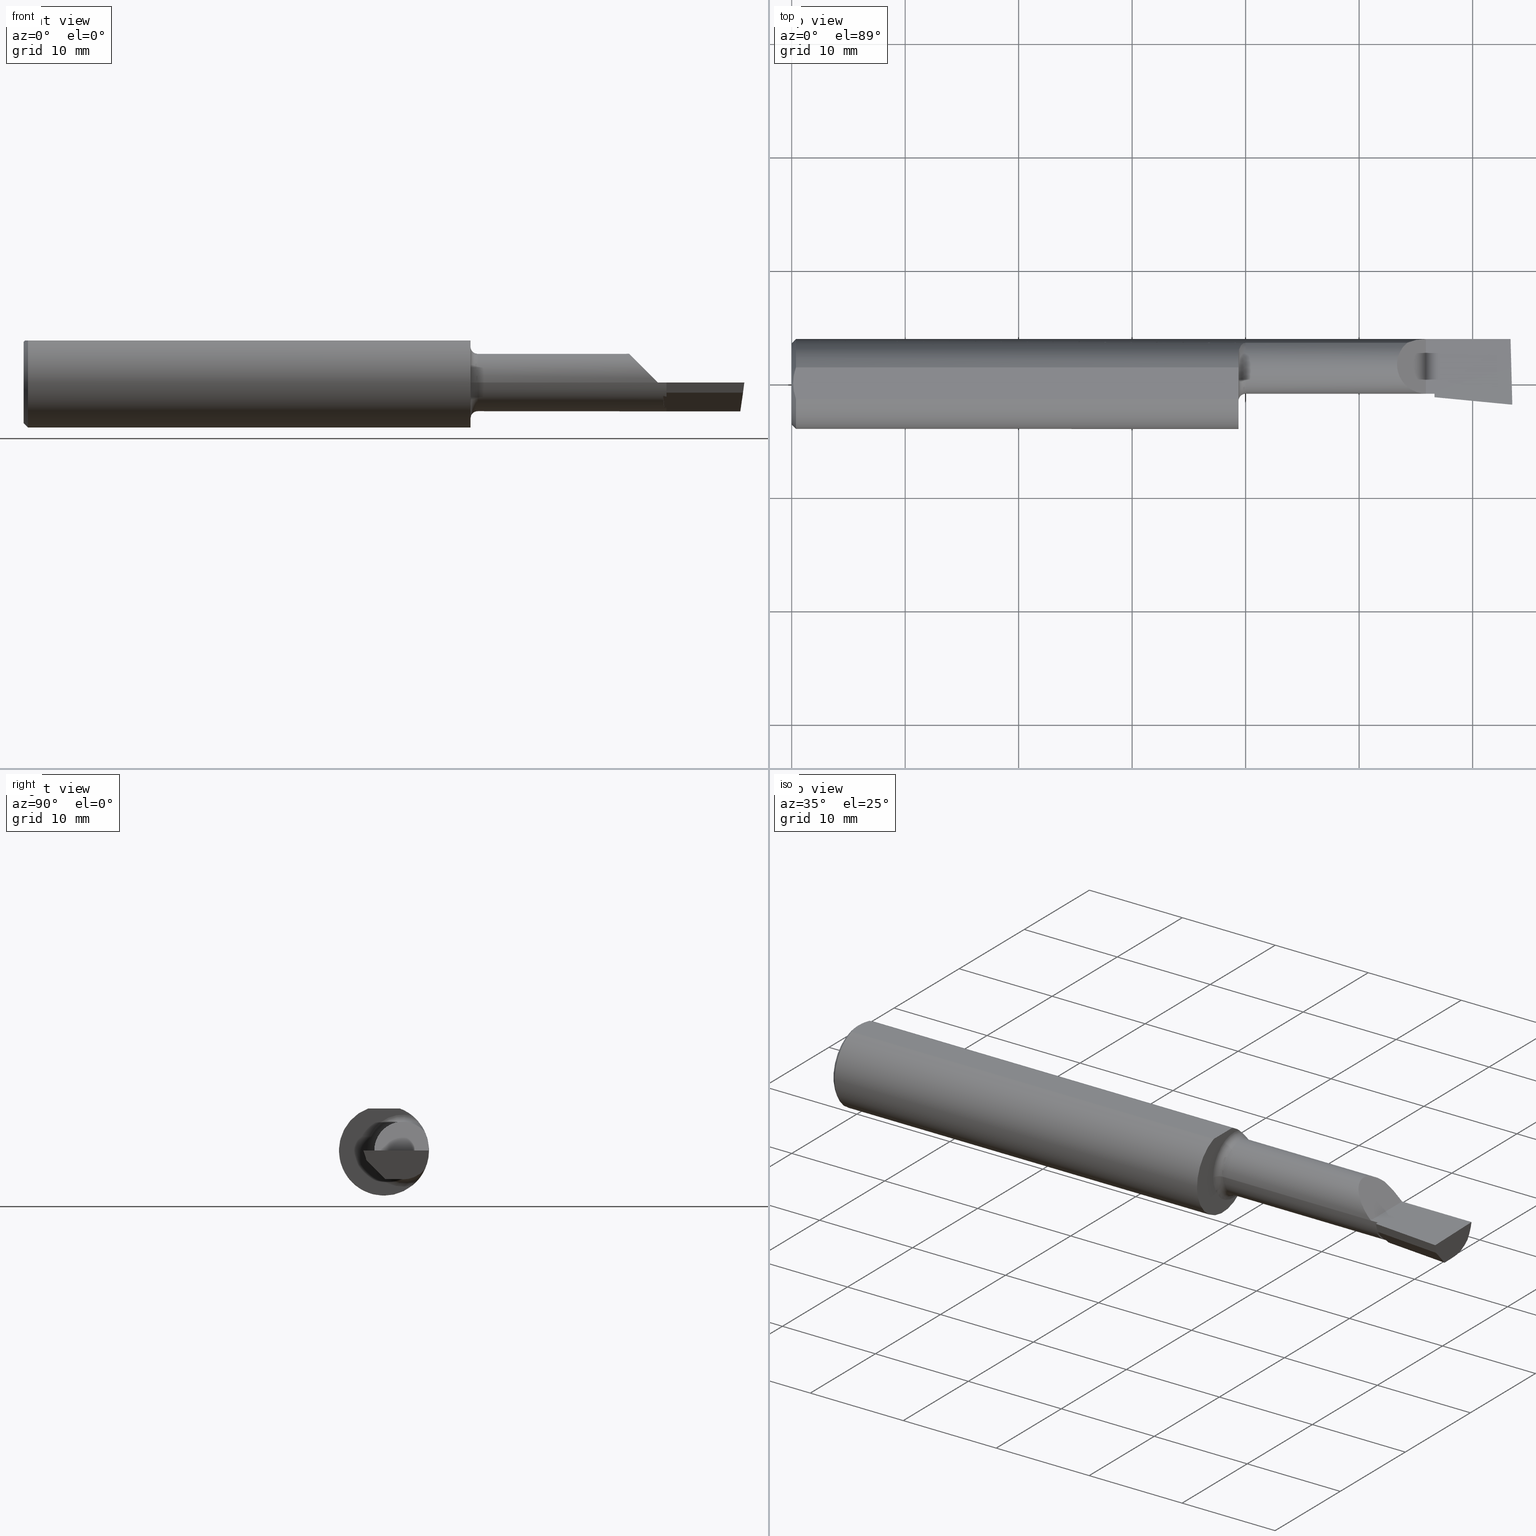
[diagram: canonical four-view strip — front | top / right | iso, engineering-drawing reading convention]
A machine part, canonical four-view strip (front | top / right | iso — engineering-drawing reading convention). The complete STEP part file that produces these views, byte-faithful:
ISO-10303-21;
HEADER;
FILE_DESCRIPTION (( 'STEP AP203' ),
    '1' );
FILE_NAME ('212028-LHB230900.STEP',
    '2024-08-23T18:55:06',
    ( '' ),
    ( '' ),
    'SwSTEP 2.0',
    'SolidWorks 2024',
    '' );
FILE_SCHEMA (( 'CONFIG_CONTROL_DESIGN' ));
ENDSEC;

DATA;
#1 = ORIENTED_EDGE ( 'NONE', *, *, #180, .F. ) ;
#2 = EDGE_CURVE ( 'NONE', #630, #461, #433, .T. ) ;
#3 = CALENDAR_DATE ( 2024, 23, 8 ) ;
#4 = DIRECTION ( 'NONE',  ( -1.000000000000000000, 3.414809992080329023E-18, -0.000000000000000000 ) ) ;
#5 = ORIENTED_EDGE ( 'NONE', *, *, #385, .T. ) ;
#6 = AXIS2_PLACEMENT_3D ( 'NONE', #624, #246, #349 ) ;
#7 = CYLINDRICAL_SURFACE ( 'NONE', #471, 0.09990000000000004432 ) ;
#8 = EDGE_CURVE ( 'NONE', #367, #207, #20, .T. ) ;
#9 = CARTESIAN_POINT ( 'NONE',  ( 1.571727793412432517, 0.1417279534125319984, 0.06543130843947221609 ) ) ;
#10 = PERSON_AND_ORGANIZATION ( #457, #568 ) ;
#11 = FACE_OUTER_BOUND ( 'NONE', #685, .T. ) ;
#12 = DIRECTION ( 'NONE',  ( 0.000000000000000000, 0.000000000000000000, 1.000000000000000000 ) ) ;
#13 = EDGE_CURVE ( 'NONE', #674, #371, #94, .T. ) ;
#14 = DIRECTION ( 'NONE',  ( 0.02677973311239052051, -0.9996413586354002678, 0.000000000000000000 ) ) ;
#15 = CARTESIAN_POINT ( 'NONE',  ( 2.229999999999999982, -0.03390000000000001346, 0.000000000000000000 ) ) ;
#16 = EDGE_LOOP ( 'NONE', ( #305, #145, #111, #203, #1 ) ) ;
#17 = CC_DESIGN_PERSON_AND_ORGANIZATION_ASSIGNMENT ( #326, #436, ( #70 ) ) ;
#18 = AXIS2_PLACEMENT_3D ( 'NONE', #220, #319, #544 ) ;
#19 = PLANE ( 'NONE',  #273 ) ;
#20 =( BOUNDED_CURVE ( )  B_SPLINE_CURVE ( 3, ( #158, #646, #104, #55 ),
 .UNSPECIFIED., .F., .F. ) 
 B_SPLINE_CURVE_WITH_KNOTS ( ( 4, 4 ),
 ( 5.216926016506045372, 5.800715090403769203 ),
 .UNSPECIFIED. ) 
 CURVE ( )  GEOMETRIC_REPRESENTATION_ITEM ( )  RATIONAL_B_SPLINE_CURVE ( ( 1.000000000000000000, 0.9718002727220685921, 0.9718002727220685921, 1.000000000000000000 ) ) 
 REPRESENTATION_ITEM ( '' )  );
#21 = ORIENTED_EDGE ( 'NONE', *, *, #92, .T. ) ;
#22 = EDGE_CURVE ( 'NONE', #302, #662, #330, .T. ) ;
#23 = DIRECTION ( 'NONE',  ( -0.09584575252022335679, -0.9953961983671787417, 0.000000000000000000 ) ) ;
#24 = CARTESIAN_POINT ( 'NONE',  ( 0.01187749995209277584, 0.04610609988228757394, 0.1460999999999999799 ) ) ;
#25 = ORIENTED_EDGE ( 'NONE', *, *, #82, .F. ) ;
#26 = DIRECTION ( 'NONE',  ( -1.000000000000000000, 3.414809992080329023E-18, -0.000000000000000000 ) ) ;
#27 = CARTESIAN_POINT ( 'NONE',  ( 2.050862765435913726, 0.07006795998724148211, 0.1491372345640848418 ) ) ;
#28 = EDGE_LOOP ( 'NONE', ( #439, #285, #448, #354 ) ) ;
#29 = LINE ( 'NONE', #243, #581 ) ;
#30 = VECTOR ( 'NONE', #487, 39.37007874015748143 ) ;
#31 = EDGE_CURVE ( 'NONE', #132, #194, #434, .T. ) ;
#32 = LINE ( 'NONE', #629, #227 ) ;
#33 = ORIENTED_EDGE ( 'NONE', *, *, #412, .T. ) ;
#34 = DIRECTION ( 'NONE',  ( -1.000000000000000000, -0.000000000000000000, -0.000000000000000000 ) ) ;
#35 = LINE ( 'NONE', #95, #283 ) ;
#36 = ORIENTED_EDGE ( 'NONE', *, *, #657, .T. ) ;
#37 = DIRECTION ( 'NONE',  ( -0.06717917588521574168, -0.6976824170844040385, 0.7132504491541851177 ) ) ;
#38 = DIRECTION ( 'NONE',  ( -0.9927123040216839778, -0.02659410830638028397, 0.1175373763844857478 ) ) ;
#39 = ORIENTED_EDGE ( 'NONE', *, *, #249, .F. ) ;
#40 = EDGE_CURVE ( 'NONE', #280, #399, #61, .T. ) ;
#41 = CARTESIAN_POINT ( 'NONE',  ( 0.01499999999999999424, 0.000000000000000000, 0.000000000000000000 ) ) ;
#42 = UNCERTAINTY_MEASURE_WITH_UNIT (LENGTH_MEASURE( 1.000000000000000082E-05 ), #583, 'distance_accuracy_value', 'NONE');
#43 = CIRCLE ( 'NONE', #265, 0.1249000000000000943 ) ;
#44 = DIRECTION ( 'NONE',  ( 0.9953961983671787417, -0.09584575252022420333, -9.831095531899268478E-17 ) ) ;
#45 = VERTEX_POINT ( 'NONE', #215 ) ;
#46 = EDGE_CURVE ( 'NONE', #194, #256, #694, .T. ) ;
#47 = CARTESIAN_POINT ( 'NONE',  ( 0.01190375560897322625, -0.04618065518901639382, 0.1461000000000000076 ) ) ;
#48 = ORIENTED_EDGE ( 'NONE', *, *, #22, .F. ) ;
#49 = PERSON_AND_ORGANIZATION ( #457, #568 ) ;
#50 = PLANE ( 'NONE',  #18 ) ;
#51 = ORIENTED_EDGE ( 'NONE', *, *, #412, .F. ) ;
#52 = CARTESIAN_POINT ( 'NONE',  ( 1.567803744158916324, 0.1404244429940951500, -0.06818941713933229787 ) ) ;
#53 = CARTESIAN_POINT ( 'NONE',  ( 2.229999999999999982, -0.06272190053731417636, -0.006732936968033723622 ) ) ;
#54 = VECTOR ( 'NONE', #14, 39.37007874015748854 ) ;
#55 = CARTESIAN_POINT ( 'NONE',  ( 2.218438857550834253, -0.02249656715429228931, -0.04635048653364759463 ) ) ;
#56 = ORIENTED_EDGE ( 'NONE', *, *, #300, .F. ) ;
#57 = VERTEX_POINT ( 'NONE', #602 ) ;
#58 = CARTESIAN_POINT ( 'NONE',  ( 1.550415155711666992, 0.1091772789608301680, 0.1117554983051645690 ) ) ;
#59 = AXIS2_PLACEMENT_3D ( 'NONE', #147, #584, #680 ) ;
#60 = CARTESIAN_POINT ( 'NONE',  ( 1.574999999999999956, -0.03390000000000009672, 0.000000000000000000 ) ) ;
#61 = LINE ( 'NONE', #320, #112 ) ;
#62 = LINE ( 'NONE', #225, #159 ) ;
#63 = CARTESIAN_POINT ( 'NONE',  ( 1.574999999999999956, 0.1419939393939388950, 0.06484544066771663617 ) ) ;
#64 = ORIENTED_EDGE ( 'NONE', *, *, #188, .T. ) ;
#65 = CARTESIAN_POINT ( 'NONE',  ( 2.490546784200027730, -0.04745170094814316064, -0.07430949365197365986 ) ) ;
#66 = CARTESIAN_POINT ( 'NONE',  ( 1.550000000000000044, -0.05890000000000009811, 0.000000000000000000 ) ) ;
#67 = ORIENTED_EDGE ( 'NONE', *, *, #8, .F. ) ;
#68 = AXIS2_PLACEMENT_3D ( 'NONE', #523, #83, #567 ) ;
#69 = CARTESIAN_POINT ( 'NONE',  ( 1.574999999999999956, 0.1419939393939390337, -0.06484544066771648352 ) ) ;
#70 = SECURITY_CLASSIFICATION ( '', '', #608 ) ;
#71 = CARTESIAN_POINT ( 'NONE',  ( 2.089191818750234741, -0.03390000000000004121, 0.1108081812497644647 ) ) ;
#72 = ORIENTED_EDGE ( 'NONE', *, *, #408, .T. ) ;
#73 = LINE ( 'NONE', #413, #417 ) ;
#74 = DIRECTION ( 'NONE',  ( 0.000000000000000000, -0.000000000000000000, -1.000000000000000000 ) ) ;
#75 = ORIENTED_EDGE ( 'NONE', *, *, #82, .T. ) ;
#76 = DIRECTION ( 'NONE',  ( 0.06836202603457079696, 0.7099667855717587406, 0.7009092642998472344 ) ) ;
#77 = EDGE_CURVE ( 'NONE', #371, #132, #332, .T. ) ;
#78 = DIRECTION ( 'NONE',  ( -3.414809992080329023E-18, -1.000000000000000000, 0.000000000000000000 ) ) ;
#79 = EDGE_LOOP ( 'NONE', ( #297, #472, #569, #533, #293, #637, #84, #455, #580, #650, #156, #308, #528 ) ) ;
#80 = DIRECTION ( 'NONE',  ( 3.414809992080329023E-18, 1.000000000000000000, -1.656870447394628111E-16 ) ) ;
#81 = AXIS2_PLACEMENT_3D ( 'NONE', #698, #563, #12 ) ;
#82 = EDGE_CURVE ( 'NONE', #207, #384, #228, .T. ) ;
#83 = DIRECTION ( 'NONE',  ( -1.000000000000000000, 3.414809992080329023E-18, -0.000000000000000000 ) ) ;
#84 = ORIENTED_EDGE ( 'NONE', *, *, #686, .F. ) ;
#85 = DIRECTION ( 'NONE',  ( -1.000000000000000000, 3.414809992080329023E-18, -0.000000000000000000 ) ) ;
#86 = CARTESIAN_POINT ( 'NONE',  ( 1.550000000000000044, 0.09941818181818157241, 0.1203463132961163223 ) ) ;
#87 = CC_DESIGN_PERSON_AND_ORGANIZATION_ASSIGNMENT ( #10, #654, ( #106 ) ) ;
#88 = ORIENTED_EDGE ( 'NONE', *, *, #458, .F. ) ;
#89 =( NAMED_UNIT ( * ) SI_UNIT ( $, .STERADIAN. ) SOLID_ANGLE_UNIT ( ) );
#90 = CARTESIAN_POINT ( 'NONE',  ( 2.200000000000000178, -0.2500000000000000555, 9.797174393178826150E-17 ) ) ;
#91 = ORIENTED_EDGE ( 'NONE', *, *, #636, .T. ) ;
#92 = EDGE_CURVE ( 'NONE', #644, #57, #335, .T. ) ;
#93 = DIRECTION ( 'NONE',  ( -1.000000000000000000, -0.000000000000000000, -0.000000000000000000 ) ) ;
#94 = CIRCLE ( 'NONE', #527, 0.1560999999999999888 ) ;
#95 = CARTESIAN_POINT ( 'NONE',  ( 2.490723658160492793, -0.02712709695662827644, -0.06821696633277901656 ) ) ;
#96 = AXIS2_PLACEMENT_3D ( 'NONE', #125, #565, #675 ) ;
#97 = ORIENTED_EDGE ( 'NONE', *, *, #557, .F. ) ;
#98 = CARTESIAN_POINT ( 'NONE',  ( 1.550428134837082306, 0.1092850169809853472, -0.1116497630123365198 ) ) ;
#99 = CARTESIAN_POINT ( 'NONE',  ( 2.486592206520481518, 0.1419939393939392558, -0.06484544066771610882 ) ) ;
#100 = ORIENTED_EDGE ( 'NONE', *, *, #636, .F. ) ;
#101 = CARTESIAN_POINT ( 'NONE',  ( 1.564650979716348811, 0.1387334617349064159, -0.07160083655282410697 ) ) ;
#102 = EDGE_CURVE ( 'NONE', #45, #614, #460, .T. ) ;
#103 = FACE_OUTER_BOUND ( 'NONE', #28, .T. ) ;
#104 = CARTESIAN_POINT ( 'NONE',  ( 2.219319914771515023, -0.01334643806718939160, -0.06382074572152920955 ) ) ;
#105 = CIRCLE ( 'NONE', #503, 0.09990000000000008595 ) ;
#106 = PRODUCT_DEFINITION_FORMATION_WITH_SPECIFIED_SOURCE ( 'ANY', '', #516, .NOT_KNOWN. ) ;
#107 = VERTEX_POINT ( 'NONE', #353 ) ;
#108 = DATE_AND_TIME ( #113, #539 ) ;
#109 = ORIENTED_EDGE ( 'NONE', *, *, #541, .T. ) ;
#110 = CARTESIAN_POINT ( 'NONE',  ( 0.000000000000000000, 0.000000000000000000, 0.000000000000000000 ) ) ;
#111 = ORIENTED_EDGE ( 'NONE', *, *, #235, .T. ) ;
#112 = VECTOR ( 'NONE', #4, 39.37007874015748143 ) ;
#113 = CALENDAR_DATE ( 2024, 23, 8 ) ;
#114 = DIRECTION ( 'NONE',  ( -9.891848030060559526E-17, 0.000000000000000000, -1.000000000000000000 ) ) ;
#115 = LINE ( 'NONE', #226, #603 ) ;
#116 = VERTEX_POINT ( 'NONE', #15 ) ;
#117 = APPROVAL_ROLE ( '' ) ;
#118 = CARTESIAN_POINT ( 'NONE',  ( 1.902500000000000080, 0.1419939393939392558, -0.06484544066771610882 ) ) ;
#119 = DIRECTION ( 'NONE',  ( -1.000000000000000000, 3.414809992080329023E-18, 0.000000000000000000 ) ) ;
#120 = ORIENTED_EDGE ( 'NONE', *, *, #188, .F. ) ;
#121 = DIRECTION ( 'NONE',  ( 3.414809992080329023E-18, 1.000000000000000000, 0.000000000000000000 ) ) ;
#122 = DIRECTION ( 'NONE',  ( -1.000000000000000000, 3.414809992080329023E-18, -0.000000000000000000 ) ) ;
#123 = ORIENTED_EDGE ( 'NONE', *, *, #582, .F. ) ;
#124 = CIRCLE ( 'NONE', #296, 0.09990000000000008595 ) ;
#125 = CARTESIAN_POINT ( 'NONE',  ( 0.01499999999999999424, 0.000000000000000000, 0.000000000000000000 ) ) ;
#126 = CC_DESIGN_APPROVAL ( #576, ( #70 ) ) ;
#127 = CARTESIAN_POINT ( 'NONE',  ( 2.200000000000000178, -0.2500000000000000555, 9.797174393178826150E-17 ) ) ;
#128 = ORIENTED_EDGE ( 'NONE', *, *, #333, .F. ) ;
#129 = ADVANCED_FACE ( 'NONE', ( #661 ), #459, .F. ) ;
#130 = FACE_OUTER_BOUND ( 'NONE', #404, .T. ) ;
#131 = CARTESIAN_POINT ( 'NONE',  ( 1.574999999999999956, 0.06599999999999998923, 0.000000000000000000 ) ) ;
#132 = VERTEX_POINT ( 'NONE', #63 ) ;
#133 = CARTESIAN_POINT ( 'NONE',  ( 0.000000000000000000, -0.05497272050753897882, 0.1461000000000000076 ) ) ;
#134 = PRODUCT_DEFINITION ( 'UNKNOWN', '', #106, #365 ) ;
#135 = CARTESIAN_POINT ( 'NONE',  ( 2.504767759937919891, -0.2498722748537978433, 6.782458027410943008E-17 ) ) ;
#136 = ORIENTED_EDGE ( 'NONE', *, *, #686, .T. ) ;
#137 = DIRECTION ( 'NONE',  ( -1.000000000000000000, 3.414809992080329023E-18, -0.000000000000000000 ) ) ;
#138 = VECTOR ( 'NONE', #144, 39.37007874015748143 ) ;
#139 = LOCAL_TIME ( 11, 55, 6.000000000000000000, #634 ) ;
#140 = CARTESIAN_POINT ( 'NONE',  ( 2.222310128493429904, 0.01770811878936139061, -0.08745229676307864075 ) ) ;
#141 = ORIENTED_EDGE ( 'NONE', *, *, #180, .T. ) ;
#142 = PERSON_AND_ORGANIZATION ( #457, #568 ) ;
#143 = ADVANCED_FACE ( 'NONE', ( #406 ), #236, .F. ) ;
#144 = DIRECTION ( 'NONE',  ( -0.02677973311239052051, 0.9996413586354002678, 2.612414329932748356E-18 ) ) ;
#145 = ORIENTED_EDGE ( 'NONE', *, *, #300, .T. ) ;
#146 = CALENDAR_DATE ( 2024, 23, 8 ) ;
#147 = CARTESIAN_POINT ( 'NONE',  ( 0.000000000000000000, 0.000000000000000000, 0.000000000000000000 ) ) ;
#148 = ORIENTED_EDGE ( 'NONE', *, *, #541, .F. ) ;
#149 = DATE_TIME_ROLE ( 'creation_date' ) ;
#150 = AXIS2_PLACEMENT_3D ( 'NONE', #247, #515, #356 ) ;
#151 = LINE ( 'NONE', #135, #138 ) ;
#152 = VERTEX_POINT ( 'NONE', #401 ) ;
#153 = ADVANCED_FACE ( 'NONE', ( #669 ), #393, .F. ) ;
#154 = CARTESIAN_POINT ( 'NONE',  ( 1.552063943834881554, 0.1181307192064760120, -0.1022448908112571081 ) ) ;
#155 = CARTESIAN_POINT ( 'NONE',  ( 0.01499999999999999944, -0.05497272050753897882, 0.1461000000000000076 ) ) ;
#156 = ORIENTED_EDGE ( 'NONE', *, *, #77, .T. ) ;
#157 = APPROVAL_DATE_TIME ( #699, #402 ) ;
#158 = CARTESIAN_POINT ( 'NONE',  ( 2.222310128493429904, 0.01770811878936139061, -0.08745229676307864075 ) ) ;
#159 = VECTOR ( 'NONE', #659, 39.37007874015748143 ) ;
#160 = APPROVAL_PERSON_ORGANIZATION ( #586, #402, #645 ) ;
#161 = CARTESIAN_POINT ( 'NONE',  ( 1.902500000000000080, 0.1419939393939392558, 0.06484544066771610882 ) ) ;
#162 = EDGE_LOOP ( 'NONE', ( #39, #416, #200, #64 ) ) ;
#163 = PLANE ( 'NONE',  #380 ) ;
#164 = B_SPLINE_CURVE_WITH_KNOTS ( 'NONE', 3,
 ( #499, #350, #555, #447, #24, #454 ),
 .UNSPECIFIED., .F., .F.,
 ( 4, 2, 4 ),
 ( 0.002884734412378666280, 0.003593604306281239329, 0.004302474200183812811 ),
 .UNSPECIFIED. ) ;
#165 = CARTESIAN_POINT ( 'NONE',  ( 1.550000000000000044, 0.000000000000000000, 0.000000000000000000 ) ) ;
#166 = CARTESIAN_POINT ( 'NONE',  ( 1.574999999999999956, 0.1419939393939390337, -0.06484544066771648352 ) ) ;
#167 = DIRECTION ( 'NONE',  ( 0.000000000000000000, -1.000000000000000000, 0.000000000000000000 ) ) ;
#168 = AXIS2_PLACEMENT_3D ( 'NONE', #261, #395, #445 ) ;
#169 = CIRCLE ( 'NONE', #347, 0.1560999999999999888 ) ;
#170 = EDGE_CURVE ( 'NONE', #280, #116, #115, .T. ) ;
#171 = DIRECTION ( 'NONE',  ( -1.000000000000000000, 3.414809992080329023E-18, -0.000000000000000000 ) ) ;
#172 = ADVANCED_BREP_SHAPE_REPRESENTATION ( '212028-LHB230900', ( #477, #504 ), #684 ) ;
#173 = APPLICATION_CONTEXT ( 'configuration controlled 3d designs of mechanical parts and assemblies' ) ;
#174 = EDGE_LOOP ( 'NONE', ( #100, #187, #509, #427 ) ) ;
#175 = CARTESIAN_POINT ( 'NONE',  ( 2.484488697759745790, 0.06558446243682164445, -0.09990000000000000269 ) ) ;
#176 = CARTESIAN_POINT ( 'NONE',  ( 2.229999999999999982, -0.02114125901369683092, -0.04885090559557524886 ) ) ;
#177 =( BOUNDED_CURVE ( )  B_SPLINE_CURVE ( 3, ( #548, #27, #71, #292 ),
 .UNSPECIFIED., .F., .T. ) 
 B_SPLINE_CURVE_WITH_KNOTS ( ( 4, 4 ),
 ( 5.418794317430681851, 7.853981633974482790 ),
 .UNSPECIFIED. ) 
 CURVE ( )  GEOMETRIC_REPRESENTATION_ITEM ( )  RATIONAL_B_SPLINE_CURVE ( ( 1.000000000000000000, 0.5639363621110593527, 0.5639363621110593527, 1.000000000000000000 ) ) 
 REPRESENTATION_ITEM ( '' )  );
#178 = VERTEX_POINT ( 'NONE', #288 ) ;
#179 = FACE_OUTER_BOUND ( 'NONE', #16, .T. ) ;
#180 = EDGE_CURVE ( 'NONE', #57, #152, #665, .T. ) ;
#181 = DIRECTION ( 'NONE',  ( 1.000000000000000000, -3.414809992080329023E-18, 0.000000000000000000 ) ) ;
#182 = ORIENTED_EDGE ( 'NONE', *, *, #46, .F. ) ;
#183 = VECTOR ( 'NONE', #590, 39.37007874015748143 ) ;
#184 = CARTESIAN_POINT ( 'NONE',  ( 1.571725699135995802, 0.1417275062431943289, -0.06543227863119886745 ) ) ;
#185 = AXIS2_PLACEMENT_3D ( 'NONE', #682, #612, #121 ) ;
#186 = EDGE_CURVE ( 'NONE', #116, #461, #505, .T. ) ;
#187 = ORIENTED_EDGE ( 'NONE', *, *, #582, .T. ) ;
#188 = EDGE_CURVE ( 'NONE', #518, #399, #124, .T. ) ;
#189 = CARTESIAN_POINT ( 'NONE',  ( 0.000000000000000000, 0.000000000000000000, 0.000000000000000000 ) ) ;
#190 = FACE_OUTER_BOUND ( 'NONE', #411, .T. ) ;
#191 = VERTEX_POINT ( 'NONE', #223 ) ;
#192 = CARTESIAN_POINT ( 'NONE',  ( 1.574999999999999956, 0.06600000000000000311, 0.000000000000000000 ) ) ;
#193 = PLANE ( 'NONE',  #150 ) ;
#194 = VERTEX_POINT ( 'NONE', #656 ) ;
#195 = DIRECTION ( 'NONE',  ( -1.000000000000000000, -0.000000000000000000, -0.000000000000000000 ) ) ;
#196 = VECTOR ( 'NONE', #535, 39.37007874015748854 ) ;
#197 = EDGE_CURVE ( 'NONE', #272, #674, #339, .T. ) ;
#198 = AXIS2_PLACEMENT_3D ( 'NONE', #294, #76, #303 ) ;
#199 = FACE_OUTER_BOUND ( 'NONE', #490, .T. ) ;
#200 = ORIENTED_EDGE ( 'NONE', *, *, #678, .F. ) ;
#201 = CARTESIAN_POINT ( 'NONE',  ( 1.553264033160802970, 0.1222037927935205326, -0.09733121088759397188 ) ) ;
#202 = PLANE ( 'NONE',  #311 ) ;
#203 = ORIENTED_EDGE ( 'NONE', *, *, #337, .T. ) ;
#204 =( LENGTH_UNIT ( ) NAMED_UNIT ( * ) SI_UNIT ( $, .METRE. ) );
#205 = CARTESIAN_POINT ( 'NONE',  ( 2.495547506291072359, -0.06038477597192913604, -0.03499999999999992700 ) ) ;
#206 = EDGE_CURVE ( 'NONE', #194, #280, #177, .T. ) ;
#207 = VERTEX_POINT ( 'NONE', #673 ) ;
#208 =( NAMED_UNIT ( * ) PLANE_ANGLE_UNIT ( ) SI_UNIT ( $, .RADIAN. ) );
#209 = AXIS2_PLACEMENT_3D ( 'NONE', #606, #181, #240 ) ;
#210 = TOROIDAL_SURFACE ( 'NONE', #284, 0.1249000000000000943, 0.02499999999999993894 ) ;
#211 = CARTESIAN_POINT ( 'NONE',  ( 2.484432346890067311, 0.1227037540429562340, -0.08745207517224946880 ) ) ;
#212 = CARTESIAN_POINT ( 'NONE',  ( 2.218438857550834253, -0.02249656715429228931, -0.04635048653364759463 ) ) ;
#213 = CC_DESIGN_DATE_AND_TIME_ASSIGNMENT ( #638, #149, ( #134 ) ) ;
#214 = LENGTH_MEASURE_WITH_UNIT ( LENGTH_MEASURE( 0.02539999999999999897 ), #204 );
#215 = CARTESIAN_POINT ( 'NONE',  ( 1.550000000000000044, 0.09941818181818157241, -0.1203463132961163223 ) ) ;
#216 = COORDINATED_UNIVERSAL_TIME_OFFSET ( 8, 0, .BEHIND. ) ;
#217 = DIRECTION ( 'NONE',  ( 0.000000000000000000, -1.000000000000000000, 0.000000000000000000 ) ) ;
#218 = CIRCLE ( 'NONE', #696, 0.02499999999999986955 ) ;
#219 = ORIENTED_EDGE ( 'NONE', *, *, #31, .F. ) ;
#220 = CARTESIAN_POINT ( 'NONE',  ( 2.217369785204464261, -0.03359930797873920960, -0.03499999999999993394 ) ) ;
#221 = CARTESIAN_POINT ( 'NONE',  ( 1.573328253254593578, 0.1419939393940946037, 0.06484544066737618628 ) ) ;
#222 = CARTESIAN_POINT ( 'NONE',  ( 2.500000000000000000, -0.2500000000000000555, 6.829619984160658046E-17 ) ) ;
#223 = CARTESIAN_POINT ( 'NONE',  ( 2.493892030279779792, 0.1560999999999997945, 6.888552856243478599E-17 ) ) ;
#224 = ADVANCED_FACE ( 'NONE', ( #279 ), #19, .F. ) ;
#225 = CARTESIAN_POINT ( 'NONE',  ( 2.229999999999999982, 0.06599999999999998923, -0.09990000000000000269 ) ) ;
#226 = CARTESIAN_POINT ( 'NONE',  ( -3.411395182087937181E-19, -0.03390000000000002039, 3.155924005931204823E-16 ) ) ;
#227 = VECTOR ( 'NONE', #44, 39.37007874015748854 ) ;
#228 =( BOUNDED_CURVE ( )  B_SPLINE_CURVE ( 3, ( #212, #431, #389, #176 ),
 .UNSPECIFIED., .F., .F. ) 
 B_SPLINE_CURVE_WITH_KNOTS ( ( 4, 4 ),
 ( 2.845084404038395576, 2.873554924506877661 ),
 .UNSPECIFIED. ) 
 CURVE ( )  GEOMETRIC_REPRESENTATION_ITEM ( )  RATIONAL_B_SPLINE_CURVE ( ( 1.000000000000000000, 0.9999324535960144589, 0.9999324535960144589, 1.000000000000000000 ) ) 
 REPRESENTATION_ITEM ( '' )  );
#229 = CC_DESIGN_SECURITY_CLASSIFICATION ( #70, ( #106 ) ) ;
#230 = ORIENTED_EDGE ( 'NONE', *, *, #206, .F. ) ;
#231 = CARTESIAN_POINT ( 'NONE',  ( 2.222310128493429904, 0.01770811878936139061, -0.08745229676307864075 ) ) ;
#232 = DIRECTION ( 'NONE',  ( -0.7071067811865507924, 0.000000000000000000, 0.7071067811865442421 ) ) ;
#233 = ORIENTED_EDGE ( 'NONE', *, *, #422, .F. ) ;
#234 = CARTESIAN_POINT ( 'NONE',  ( 2.217369785204464261, -0.03359930797873920960, -0.03499999999999993394 ) ) ;
#235 = EDGE_CURVE ( 'NONE', #178, #272, #164, .T. ) ;
#236 = PLANE ( 'NONE',  #514 ) ;
#237 = ORIENTED_EDGE ( 'NONE', *, *, #432, .T. ) ;
#238 = FACE_OUTER_BOUND ( 'NONE', #262, .T. ) ;
#239 = CC_DESIGN_PERSON_AND_ORGANIZATION_ASSIGNMENT ( #49, #488, ( #516 ) ) ;
#240 = DIRECTION ( 'NONE',  ( 3.414809992080329023E-18, 1.000000000000000000, 0.000000000000000000 ) ) ;
#241 = ORIENTED_EDGE ( 'NONE', *, *, #77, .F. ) ;
#242 = CIRCLE ( 'NONE', #628, 0.09990000000000000269 ) ;
#243 = CARTESIAN_POINT ( 'NONE',  ( 2.229999999999999982, -0.06272190053731417636, -0.006732936968033723622 ) ) ;
#244 = CARTESIAN_POINT ( 'NONE',  ( 2.447241460535985791, -0.07328153097650992598, -0.4459074505892772211 ) ) ;
#245 = EDGE_LOOP ( 'NONE', ( #620, #67 ) ) ;
#246 = DIRECTION ( 'NONE',  ( -1.000000000000000000, 3.414809992080329023E-18, -0.000000000000000000 ) ) ;
#247 = CARTESIAN_POINT ( 'NONE',  ( 2.500000000000000000, 0.06599999999999998923, -0.09990000000000000269 ) ) ;
#248 = ORIENTED_EDGE ( 'NONE', *, *, #458, .T. ) ;
#249 = EDGE_CURVE ( 'NONE', #251, #399, #218, .T. ) ;
#250 = DIRECTION ( 'NONE',  ( 0.000000000000000000, -1.000000000000000000, 0.000000000000000000 ) ) ;
#251 = VERTEX_POINT ( 'NONE', #683 ) ;
#252 = VECTOR ( 'NONE', #508, 39.37007874015748143 ) ;
#253 = CC_DESIGN_DATE_AND_TIME_ASSIGNMENT ( #108, #391, ( #70 ) ) ;
#254 = AXIS2_PLACEMENT_3D ( 'NONE', #299, #287, #507 ) ;
#255 = CARTESIAN_POINT ( 'NONE',  ( 2.229999999999999982, -0.02114125901369683092, -0.04885090559557524886 ) ) ;
#256 = VERTEX_POINT ( 'NONE', #478 ) ;
#257 = CARTESIAN_POINT ( 'NONE',  ( 2.224959910392297235, 0.01714715917505337320, -0.08714253022679750715 ) ) ;
#258 = ORIENTED_EDGE ( 'NONE', *, *, #315, .F. ) ;
#259 = APPLICATION_PROTOCOL_DEFINITION ( 'international standard', 'config_control_design', 1994, #173 ) ;
#260 = EDGE_CURVE ( 'NONE', #256, #191, #363, .T. ) ;
#261 = CARTESIAN_POINT ( 'NONE',  ( 1.550000000000000044, 0.06599999999999998923, 0.000000000000000000 ) ) ;
#262 = EDGE_LOOP ( 'NONE', ( #56, #128, #141, #136, #524 ) ) ;
#263 = COORDINATED_UNIVERSAL_TIME_OFFSET ( 8, 0, .BEHIND. ) ;
#264 = TOROIDAL_SURFACE ( 'NONE', #658, 0.1249000000000000943, 0.02499999999999993894 ) ;
#265 = AXIS2_PLACEMENT_3D ( 'NONE', #519, #85, #250 ) ;
#266 = DIRECTION ( 'NONE',  ( 0.000000000000000000, -1.000000000000000000, 0.000000000000000000 ) ) ;
#267 = CARTESIAN_POINT ( 'NONE',  ( 2.494014181086415149, 0.003834893732622192755, -0.09990000000000000269 ) ) ;
#268 = ORIENTED_EDGE ( 'NONE', *, *, #40, .T. ) ;
#269 = ADVANCED_FACE ( 'NONE', ( #190 ), #529, .T. ) ;
#270 = PERSON_AND_ORGANIZATION ( #457, #568 ) ;
#271 = APPLICATION_CONTEXT ( 'configuration controlled 3d designs of mechanical parts and assemblies' ) ;
#272 = VERTEX_POINT ( 'NONE', #307 ) ;
#273 = AXIS2_PLACEMENT_3D ( 'NONE', #127, #618, #232 ) ;
#274 = CARTESIAN_POINT ( 'NONE',  ( 1.552040506864491354, 0.1180407066556266454, 0.1023492120876701161 ) ) ;
#275 = FACE_OUTER_BOUND ( 'NONE', #343, .T. ) ;
#276 = ADVANCED_FACE ( 'NONE', ( #295 ), #193, .F. ) ;
#277 = PERSON_AND_ORGANIZATION_ROLE ( 'creator' ) ;
#278 = CARTESIAN_POINT ( 'NONE',  ( 1.574999999999999956, 0.06600000000000000311, 0.000000000000000000 ) ) ;
#279 = FACE_OUTER_BOUND ( 'NONE', #681, .T. ) ;
#280 = VERTEX_POINT ( 'NONE', #574 ) ;
#281 = DIRECTION ( 'NONE',  ( 0.1199690778467073504, -0.3102690083707254076, 0.9430485474275740465 ) ) ;
#282 = DIRECTION ( 'NONE',  ( 1.000000000000000000, 0.000000000000000000, 0.000000000000000000 ) ) ;
#283 = VECTOR ( 'NONE', #526, 39.37007874015748854 ) ;
#284 = AXIS2_PLACEMENT_3D ( 'NONE', #192, #26, #469 ) ;
#285 = ORIENTED_EDGE ( 'NONE', *, *, #422, .T. ) ;
#286 = EDGE_CURVE ( 'NONE', #506, #191, #151, .T. ) ;
#287 = DIRECTION ( 'NONE',  ( 1.000000000000000000, 0.000000000000000000, 0.000000000000000000 ) ) ;
#288 = CARTESIAN_POINT ( 'NONE',  ( 0.005000000000000177913, 2.057148876208899831E-17, 0.1460999999999999799 ) ) ;
#289 = VERTEX_POINT ( 'NONE', #205 ) ;
#290 = ADVANCED_FACE ( 'NONE', ( #199 ), #202, .F. ) ;
#291 = CARTESIAN_POINT ( 'NONE',  ( 2.229999999999999982, 0.02925656794008579115, -0.09990000000000000269 ) ) ;
#292 = CARTESIAN_POINT ( 'NONE',  ( 2.200000000000000178, -0.03390000000000021468, 9.797174393178826150E-17 ) ) ;
#293 = ORIENTED_EDGE ( 'NONE', *, *, #102, .T. ) ;
#294 = CARTESIAN_POINT ( 'NONE',  ( 2.217369785204464261, -0.03359930797873920960, -0.03499999999999993394 ) ) ;
#295 = FACE_OUTER_BOUND ( 'NONE', #641, .T. ) ;
#296 = AXIS2_PLACEMENT_3D ( 'NONE', #131, #122, #345 ) ;
#297 = ORIENTED_EDGE ( 'NONE', *, *, #260, .T. ) ;
#298 = PRODUCT_DEFINITION_SHAPE ( 'NONE', 'NONE',  #134 ) ;
#299 = CARTESIAN_POINT ( 'NONE',  ( 0.01499999999999999424, 0.000000000000000000, 0.000000000000000000 ) ) ;
#300 = EDGE_CURVE ( 'NONE', #644, #178, #419, .T. ) ;
#301 = DIRECTION ( 'NONE',  ( 0.9953961983671787417, -0.09584575252022421721, -0.000000000000000000 ) ) ;
#302 = VERTEX_POINT ( 'NONE', #520 ) ;
#303 = DIRECTION ( 'NONE',  ( 0.000000000000000000, -0.7025528302622678911, 0.7116315905652845775 ) ) ;
#304 = CARTESIAN_POINT ( 'NONE',  ( 2.486592206520481518, 0.1419939393939392558, -0.06484544066771610882 ) ) ;
#305 = ORIENTED_EDGE ( 'NONE', *, *, #92, .F. ) ;
#306 = PRODUCT_RELATED_PRODUCT_CATEGORY ( 'detail', '', ( #516 ) ) ;
#307 = CARTESIAN_POINT ( 'NONE',  ( 0.01499999999999999424, 0.05497272050753903433, 0.1460999999999999521 ) ) ;
#308 = ORIENTED_EDGE ( 'NONE', *, *, #31, .T. ) ;
#309 = EDGE_CURVE ( 'NONE', #280, #256, #691, .T. ) ;
#310 = APPLICATION_PROTOCOL_DEFINITION ( 'international standard', 'config_control_design', 1994, #271 ) ;
#311 = AXIS2_PLACEMENT_3D ( 'NONE', #244, #38, #426 ) ;
#312 = AXIS2_PLACEMENT_3D ( 'NONE', #189, #34, #453 ) ;
#313 = CARTESIAN_POINT ( 'NONE',  ( 2.227523279994489513, 0.01658920591323143415, -0.08682738081222331206 ) ) ;
#314 = ORIENTED_EDGE ( 'NONE', *, *, #206, .T. ) ;
#315 = EDGE_CURVE ( 'NONE', #630, #289, #467, .T. ) ;
#316 = CARTESIAN_POINT ( 'NONE',  ( 2.484477565782318376, 0.06599999999999998923, -0.09990000000000000269 ) ) ;
#317 = ORIENTED_EDGE ( 'NONE', *, *, #170, .T. ) ;
#318 = APPROVAL_STATUS ( 'not_yet_approved' ) ;
#319 = DIRECTION ( 'NONE',  ( 0.09140971883575742252, 0.9493262270931228652, 0.3007057995042736742 ) ) ;
#320 = CARTESIAN_POINT ( 'NONE',  ( -3.411395182088250145E-19, -0.03390000000000004121, 0.000000000000000000 ) ) ;
#321 = CARTESIAN_POINT ( 'NONE',  ( 0.000000000000000000, 0.000000000000000000, 0.000000000000000000 ) ) ;
#322 = AXIS2_PLACEMENT_3D ( 'NONE', #110, #532, #547 ) ;
#323 = CONICAL_SURFACE ( 'NONE', #254, 0.1560999999999999888, 0.7853981633974602694 ) ;
#324 = EDGE_CURVE ( 'NONE', #302, #289, #35, .T. ) ;
#325 = CARTESIAN_POINT ( 'NONE',  ( 1.553262464810605481, 0.1222000088982458377, 0.09733625715976150505 ) ) ;
#326 = PERSON_AND_ORGANIZATION ( #457, #568 ) ;
#327 =( BOUNDED_CURVE ( )  B_SPLINE_CURVE ( 3, ( #99, #211, #341, #316 ),
 .UNSPECIFIED., .F., .T. ) 
 B_SPLINE_CURVE_WITH_KNOTS ( ( 4, 4 ),
 ( 5.641308543522681518, 6.505699533271584123 ),
 .UNSPECIFIED. ) 
 CURVE ( )  GEOMETRIC_REPRESENTATION_ITEM ( )  RATIONAL_B_SPLINE_CURVE ( ( 1.000000000000000000, 0.9386988813357775019, 0.9386988813357775019, 1.000000000000000000 ) ) 
 REPRESENTATION_ITEM ( '' )  );
#328 = CARTESIAN_POINT ( 'NONE',  ( 1.568988484139259620, 0.1409410548628156068, 0.06710952210203097179 ) ) ;
#329 = SHAPE_DEFINITION_REPRESENTATION ( #298, #172 ) ;
#330 = LINE ( 'NONE', #267, #183 ) ;
#331 = COORDINATED_UNIVERSAL_TIME_OFFSET ( 8, 0, .BEHIND. ) ;
#332 = B_SPLINE_CURVE_WITH_KNOTS ( 'NONE', 3,
 ( #543, #489, #58, #274, #325, #540, #647, #382, #597, #376, #328, #9, #221, #441 ),
 .UNSPECIFIED., .F., .F.,
 ( 4, 2, 2, 2, 2, 2, 4 ),
 ( 0.0001856976868807074985, 0.0006805519038525511231, 0.001175406120824394694, 0.001670260337796238481, 0.001917687446282160049, 0.002041401000525120725, 0.002165114554768081401 ),
 .UNSPECIFIED. ) ;
#333 = EDGE_CURVE ( 'NONE', #57, #644, #553, .T. ) ;
#334 = CARTESIAN_POINT ( 'NONE',  ( 2.488761500660856107, 0.1513252362624135372, -0.04441242967472200376 ) ) ;
#335 = CIRCLE ( 'NONE', #81, 0.1410999999999996146 ) ;
#336 = CARTESIAN_POINT ( 'NONE',  ( 2.135154559332283597, 0.1419939393939393113, 0.06484544066771606718 ) ) ;
#337 = EDGE_CURVE ( 'NONE', #272, #152, #484, .T. ) ;
#338 = EDGE_CURVE ( 'NONE', #461, #506, #32, .T. ) ;
#339 = LINE ( 'NONE', #342, #579 ) ;
#340 = ORIENTED_EDGE ( 'NONE', *, *, #333, .T. ) ;
#341 = CARTESIAN_POINT ( 'NONE',  ( 2.483681434898939333, 0.09571819601686547274, -0.09990000000000004432 ) ) ;
#342 = CARTESIAN_POINT ( 'NONE',  ( 0.000000000000000000, 0.05497272050753903433, 0.1460999999999999521 ) ) ;
#343 = EDGE_LOOP ( 'NONE', ( #148, #348, #248, #241 ) ) ;
#344 = CARTESIAN_POINT ( 'NONE',  ( 1.550000000000000044, 0.05497272050753902739, 0.1460999999999999521 ) ) ;
#345 = DIRECTION ( 'NONE',  ( 0.000000000000000000, -1.000000000000000000, 0.000000000000000000 ) ) ;
#346 = VECTOR ( 'NONE', #137, 39.37007874015748143 ) ;
#347 = AXIS2_PLACEMENT_3D ( 'NONE', #41, #93, #534 ) ;
#348 = ORIENTED_EDGE ( 'NONE', *, *, #249, .T. ) ;
#349 = DIRECTION ( 'NONE',  ( 0.000000000000000000, -1.000000000000000000, 0.000000000000000000 ) ) ;
#350 = CARTESIAN_POINT ( 'NONE',  ( 0.005000000000000138882, 0.009391435229055633896, 0.1460999999999999521 ) ) ;
#351 = VERTEX_POINT ( 'NONE', #410 ) ;
#352 = DIRECTION ( 'NONE',  ( -0.9953961983671788527, 0.09584575252022337066, -1.070140692284085954E-15 ) ) ;
#353 = CARTESIAN_POINT ( 'NONE',  ( 2.229999999999999982, 0.01603431065556216312, -0.08650687769382923997 ) ) ;
#354 = ORIENTED_EDGE ( 'NONE', *, *, #2, .F. ) ;
#355 = CARTESIAN_POINT ( 'NONE',  ( 2.231968825800311862, 0.1180175255981946586, -0.1900000000000010014 ) ) ;
#356 = DIRECTION ( 'NONE',  ( 1.000000000000000000, 0.000000000000000000, 0.000000000000000000 ) ) ;
#357 = VECTOR ( 'NONE', #281, 39.37007874015748143 ) ;
#358 = ORIENTED_EDGE ( 'NONE', *, *, #385, .F. ) ;
#359 = FACE_OUTER_BOUND ( 'NONE', #79, .T. ) ;
#360 = CARTESIAN_POINT ( 'NONE',  ( 0.009356849677356088302, -0.03706298561014170767, 0.1461000000000000354 ) ) ;
#361 = EDGE_LOOP ( 'NONE', ( #340, #21 ) ) ;
#362 = CARTESIAN_POINT ( 'NONE',  ( 1.549999999999999378, 0.1044772303701482080, -0.1161670294028998712 ) ) ;
#363 = LINE ( 'NONE', #687, #446 ) ;
#364 = ORIENTED_EDGE ( 'NONE', *, *, #653, .F. ) ;
#365 = DESIGN_CONTEXT ( 'detailed design', #173, 'design' ) ;
#366 = DIRECTION ( 'NONE',  ( -1.000000000000000000, -0.000000000000000000, -0.000000000000000000 ) ) ;
#367 = VERTEX_POINT ( 'NONE', #140 ) ;
#368 = EDGE_CURVE ( 'NONE', #475, #178, #375, .T. ) ;
#369 = VECTOR ( 'NONE', #676, 39.37007874015748143 ) ;
#370 = CARTESIAN_POINT ( 'NONE',  ( 0.01499999999999999424, 1.911673653469018068E-17, 0.1560999999999999888 ) ) ;
#371 = VERTEX_POINT ( 'NONE', #86 ) ;
#372 = CARTESIAN_POINT ( 'NONE',  ( 1.556590010709524519, 0.1296703571699484581, -0.08713627291424033694 ) ) ;
#373 = CC_DESIGN_PERSON_AND_ORGANIZATION_ASSIGNMENT ( #142, #277, ( #106 ) ) ;
#374 = LINE ( 'NONE', #53, #196 ) ;
#375 = B_SPLINE_CURVE_WITH_KNOTS ( 'NONE', 3,
 ( #625, #47, #360, #632, #578, #572 ),
 .UNSPECIFIED., .F., .F.,
 ( 4, 2, 4 ),
 ( 0.001468071159906499112, 0.002176402786142582479, 0.002884734412378666280 ),
 .UNSPECIFIED. ) ;
#376 = CARTESIAN_POINT ( 'NONE',  ( 1.567808428589329894, 0.1404263024719109298, 0.06818548243543511023 ) ) ;
#377 = DIRECTION ( 'NONE',  ( 1.000000000000000000, 0.000000000000000000, 0.000000000000000000 ) ) ;
#378 = ORIENTED_EDGE ( 'NONE', *, *, #102, .F. ) ;
#379 = DATE_AND_TIME ( #598, #517 ) ;
#380 = AXIS2_PLACEMENT_3D ( 'NONE', #222, #114, #386 ) ;
#381 = CC_DESIGN_APPROVAL ( #402, ( #106 ) ) ;
#382 = CARTESIAN_POINT ( 'NONE',  ( 1.563017092274625375, 0.1374043365808042538, 0.07413505991998718681 ) ) ;
#383 = VERTEX_POINT ( 'NONE', #304 ) ;
#384 = VERTEX_POINT ( 'NONE', #255 ) ;
#385 = EDGE_CURVE ( 'NONE', #107, #367, #689, .T. ) ;
#386 = DIRECTION ( 'NONE',  ( -1.000000000000000000, 0.000000000000000000, 9.891848030060559526E-17 ) ) ;
#387 = DIRECTION ( 'NONE',  ( -1.000000000000000000, 3.414809992080329023E-18, -0.000000000000000000 ) ) ;
#388 = DIMENSIONAL_EXPONENTS ( 1.000000000000000000, 0.000000000000000000, 0.000000000000000000, 0.000000000000000000, 0.000000000000000000, 0.000000000000000000, 0.000000000000000000 ) ;
#389 = CARTESIAN_POINT ( 'NONE',  ( 2.226335579060370495, -0.02160487824124662781, -0.04802389199779039802 ) ) ;
#390 = ORIENTED_EDGE ( 'NONE', *, *, #525, .T. ) ;
#391 = DATE_TIME_ROLE ( 'classification_date' ) ;
#392 = LINE ( 'NONE', #118, #346 ) ;
#393 = PLANE ( 'NONE',  #209 ) ;
#394 = EDGE_LOOP ( 'NONE', ( #564, #230, #219, #88 ) ) ;
#395 = DIRECTION ( 'NONE',  ( -1.000000000000000000, 3.414809992080329023E-18, -0.000000000000000000 ) ) ;
#396 = EDGE_CURVE ( 'NONE', #501, #107, #242, .T. ) ;
#397 = DIRECTION ( 'NONE',  ( 0.000000000000000000, -1.656870447394628111E-16, -1.000000000000000000 ) ) ;
#398 = B_SPLINE_CURVE_WITH_KNOTS ( 'NONE', 3,
 ( #69, #671, #184, #405, #52, #101, #577, #485, #372, #201, #154, #98, #362, #480 ),
 .UNSPECIFIED., .F., .F.,
 ( 4, 2, 2, 2, 2, 2, 4 ),
 ( 1.961289441070630364E-07, 0.0001258819157031976720, 0.0002515677024622882743, 0.0005029392759804704547, 0.001005682423016825491, 0.001508425570053180528, 0.002011168717089535565 ),
 .UNSPECIFIED. ) ;
#399 = VERTEX_POINT ( 'NONE', #60 ) ;
#400 = PLANE ( 'NONE',  #660 ) ;
#401 = CARTESIAN_POINT ( 'NONE',  ( 0.01499999999999999424, 0.000000000000000000, -0.1560999999999999888 ) ) ;
#402 = APPROVAL ( #318, 'UNSPECIFIED' ) ;
#403 = APPROVAL_PERSON_ORGANIZATION ( #476, #588, #429 ) ;
#404 = EDGE_LOOP ( 'NONE', ( #48, #512, #258, #123, #25, #464, #358, #560 ) ) ;
#405 = CARTESIAN_POINT ( 'NONE',  ( 1.568987086440955858, 0.1409404987250977015, -0.06711069163632760182 ) ) ;
#406 = FACE_OUTER_BOUND ( 'NONE', #626, .T. ) ;
#407 = ORIENTED_EDGE ( 'NONE', *, *, #13, .F. ) ;
#408 = EDGE_CURVE ( 'NONE', #45, #251, #640, .T. ) ;
#409 = CARTESIAN_POINT ( 'NONE',  ( 2.229999999999999982, -0.03481545933993181879, -0.03499999999999993394 ) ) ;
#410 = CARTESIAN_POINT ( 'NONE',  ( 2.484477565782318376, 0.06599999999999998923, -0.09990000000000000269 ) ) ;
#411 = EDGE_LOOP ( 'NONE', ( #542, #268, #120, #424, #33, #611, #468, #5, #556, #75, #91 ) ) ;
#412 = EDGE_CURVE ( 'NONE', #383, #351, #327, .T. ) ;
#413 = CARTESIAN_POINT ( 'NONE',  ( 1.550000000000000044, 0.2061000000000000332, 0.1460999999999999521 ) ) ;
#414 = ADVANCED_FACE ( 'NONE', ( #275 ), #264, .F. ) ;
#415 = DIRECTION ( 'NONE',  ( 0.000000000000000000, 0.000000000000000000, 1.000000000000000000 ) ) ;
#416 = ORIENTED_EDGE ( 'NONE', *, *, #408, .F. ) ;
#417 = VECTOR ( 'NONE', #80, 39.37007874015748143 ) ;
#418 = APPROVAL_DATE_TIME ( #693, #588 ) ;
#419 = LINE ( 'NONE', #370, #672 ) ;
#420 = ORIENTED_EDGE ( 'NONE', *, *, #368, .F. ) ;
#421 = APPROVAL_STATUS ( 'not_yet_approved' ) ;
#422 = EDGE_CURVE ( 'NONE', #289, #506, #655, .T. ) ;
#423 = DIRECTION ( 'NONE',  ( 1.000000000000000000, 0.000000000000000000, 0.000000000000000000 ) ) ;
#424 = ORIENTED_EDGE ( 'NONE', *, *, #531, .F. ) ;
#425 = PERSON_AND_ORGANIZATION_ROLE ( 'creator' ) ;
#426 = DIRECTION ( 'NONE',  ( 0.1175789623991730648, 0.000000000000000000, 0.9930635365378861490 ) ) ;
#427 = ORIENTED_EDGE ( 'NONE', *, *, #186, .F. ) ;
#428 = CLOSED_SHELL ( 'NONE', ( #269, #414, #604, #668, #438, #596, #587, #143, #500, #224, #664, #129, #153, #492, #276, #449, #562, #571, #290 ) ) ;
#429 = APPROVAL_ROLE ( '' ) ;
#430 = CARTESIAN_POINT ( 'NONE',  ( 1.574999999999999956, 0.06599999999999998923, 0.000000000000000000 ) ) ;
#431 = CARTESIAN_POINT ( 'NONE',  ( 2.222481604588531834, -0.02205667813890349604, -0.04719036267523946115 ) ) ;
#432 = EDGE_CURVE ( 'NONE', #351, #302, #440, .T. ) ;
#433 = LINE ( 'NONE', #600, #593 ) ;
#434 = LINE ( 'NONE', #161, #30 ) ;
#435 = ORIENTED_EDGE ( 'NONE', *, *, #309, .T. ) ;
#436 = PERSON_AND_ORGANIZATION_ROLE ( 'classification_officer' ) ;
#437 = APPROVAL_PERSON_ORGANIZATION ( #270, #576, #117 ) ;
#438 = ADVANCED_FACE ( 'NONE', ( #481 ), #502, .F. ) ;
#439 = ORIENTED_EDGE ( 'NONE', *, *, #315, .T. ) ;
#440 = LINE ( 'NONE', #175, #54 ) ;
#441 = CARTESIAN_POINT ( 'NONE',  ( 1.574999999999999956, 0.1419939393939388950, 0.06484544066771663617 ) ) ;
#442 = EDGE_CURVE ( 'NONE', #191, #383, #599, .T. ) ;
#443 = CARTESIAN_POINT ( 'NONE',  ( 2.500000000000000000, -0.07190000000000008884, 1.024442997624098707E-16 ) ) ;
#444 = CARTESIAN_POINT ( 'NONE',  ( 2.229999999999999982, -0.2500000000000000555, 9.500418952277011559E-17 ) ) ;
#445 = DIRECTION ( 'NONE',  ( 0.000000000000000000, -1.000000000000000000, 0.000000000000000000 ) ) ;
#446 = VECTOR ( 'NONE', #423, 39.37007874015748143 ) ;
#447 = CARTESIAN_POINT ( 'NONE',  ( 0.009371209226504017067, 0.03711161584255317364, 0.1460999999999999799 ) ) ;
#448 = ORIENTED_EDGE ( 'NONE', *, *, #338, .F. ) ;
#449 = ADVANCED_FACE ( 'NONE', ( #103 ), #50, .F. ) ;
#450 = DIRECTION ( 'NONE',  ( -1.000000000000000000, 3.414809992080329023E-18, -0.000000000000000000 ) ) ;
#451 = CARTESIAN_POINT ( 'NONE',  ( 0.01499999999999999424, 0.000000000000000000, -0.1560999999999999888 ) ) ;
#452 = ORIENTED_EDGE ( 'NONE', *, *, #286, .F. ) ;
#453 = DIRECTION ( 'NONE',  ( 0.000000000000000000, 0.000000000000000000, 1.000000000000000000 ) ) ;
#454 = CARTESIAN_POINT ( 'NONE',  ( 0.01499999999999999424, 0.05497272050753903433, 0.1460999999999999521 ) ) ;
#455 = ORIENTED_EDGE ( 'NONE', *, *, #337, .F. ) ;
#456 = FACE_OUTER_BOUND ( 'NONE', #688, .T. ) ;
#457 = PERSON ( 'UNSPECIFIED', 'UNSPECIFIED', 'UNSPECIFIED', ('UNSPECIFIED'), ('UNSPECIFIED'), ('UNSPECIFIED') ) ;
#458 = EDGE_CURVE ( 'NONE', #399, #132, #105, .T. ) ;
#459 = PLANE ( 'NONE',  #648 ) ;
#460 = CIRCLE ( 'NONE', #616, 0.1560999999999999888 ) ;
#461 = VERTEX_POINT ( 'NONE', #643 ) ;
#462 = CYLINDRICAL_SURFACE ( 'NONE', #312, 0.1560999999999999888 ) ;
#463 = DIRECTION ( 'NONE',  ( 0.7071067811865390240, 8.659560562355036396E-17, 0.7071067811865560104 ) ) ;
#464 = ORIENTED_EDGE ( 'NONE', *, *, #619, .F. ) ;
#465 = CC_DESIGN_PERSON_AND_ORGANIZATION_ASSIGNMENT ( #690, #425, ( #134 ) ) ;
#466 = CARTESIAN_POINT ( 'NONE',  ( 2.500000000000000000, 0.06599999999999998923, -0.09990000000000000269 ) ) ;
#467 = LINE ( 'NONE', #639, #537 ) ;
#468 = ORIENTED_EDGE ( 'NONE', *, *, #396, .T. ) ;
#469 = DIRECTION ( 'NONE',  ( -3.414809992080329023E-18, -1.000000000000000000, 0.000000000000000000 ) ) ;
#470 = CARTESIAN_POINT ( 'NONE',  ( 2.229999999999999982, 0.06599999999999998923, 0.000000000000000000 ) ) ;
#471 = AXIS2_PLACEMENT_3D ( 'NONE', #651, #387, #609 ) ;
#472 = ORIENTED_EDGE ( 'NONE', *, *, #442, .T. ) ;
#473 = VECTOR ( 'NONE', #195, 39.37007874015748143 ) ;
#474 = CARTESIAN_POINT ( 'NONE',  ( 2.229999999999999982, 0.01603431065556216312, -0.08650687769382923997 ) ) ;
#475 = VERTEX_POINT ( 'NONE', #155 ) ;
#476 = PERSON_AND_ORGANIZATION ( #457, #568 ) ;
#477 = MANIFOLD_SOLID_BREP ( 'Extrude7', #428 ) ;
#478 = CARTESIAN_POINT ( 'NONE',  ( 2.200000000000000178, 0.1560999999999997667, 9.797174393178826150E-17 ) ) ;
#479 = ORIENTED_EDGE ( 'NONE', *, *, #657, .F. ) ;
#480 = CARTESIAN_POINT ( 'NONE',  ( 1.550000000000000044, 0.09941818181818157241, -0.1203463132961163223 ) ) ;
#481 = FACE_OUTER_BOUND ( 'NONE', #361, .T. ) ;
#482 = EDGE_CURVE ( 'NONE', #662, #107, #374, .T. ) ;
#483 = ORIENTED_EDGE ( 'NONE', *, *, #442, .F. ) ;
#484 = CIRCLE ( 'NONE', #545, 0.1560999999999999888 ) ;
#485 = CARTESIAN_POINT ( 'NONE',  ( 1.558682090340782755, 0.1330572531291638050, -0.08183785561185299984 ) ) ;
#486 = VECTOR ( 'NONE', #37, 39.37007874015748854 ) ;
#487 = DIRECTION ( 'NONE',  ( 1.000000000000000000, -3.414809992080329023E-18, 0.000000000000000000 ) ) ;
#488 = PERSON_AND_ORGANIZATION_ROLE ( 'design_owner' ) ;
#489 = CARTESIAN_POINT ( 'NONE',  ( 1.550000000000000044, 0.1044500923568686818, 0.1161894481365072923 ) ) ;
#490 = EDGE_LOOP ( 'NONE', ( #452, #233, #585, #623, #51, #483 ) ) ;
#491 = DIRECTION ( 'NONE',  ( 0.000000000000000000, -1.000000000000000000, 0.000000000000000000 ) ) ;
#492 = ADVANCED_FACE ( 'NONE', ( #589 ), #7, .T. ) ;
#493 = LOCAL_TIME ( 11, 55, 6.000000000000000000, #642 ) ;
#494 = CARTESIAN_POINT ( 'NONE',  ( 2.177537118629004453, 0.1560999999999999888, 0.02246288137099531138 ) ) ;
#495 = DIRECTION ( 'NONE',  ( -1.000000000000000000, 3.414809992080329023E-18, -0.000000000000000000 ) ) ;
#496 = CARTESIAN_POINT ( 'NONE',  ( 1.550000000000000044, 0.000000000000000000, 0.000000000000000000 ) ) ;
#497 = APPROVAL_STATUS ( 'not_yet_approved' ) ;
#498 = CARTESIAN_POINT ( 'NONE',  ( 2.486592206520481518, 0.1419939393939392558, -0.06484544066771610882 ) ) ;
#499 = CARTESIAN_POINT ( 'NONE',  ( 0.005000000000000177913, 2.057148876208899831E-17, 0.1460999999999999799 ) ) ;
#500 = ADVANCED_FACE ( 'NONE', ( #11 ), #163, .F. ) ;
#501 = VERTEX_POINT ( 'NONE', #601 ) ;
#502 = PLANE ( 'NONE',  #322 ) ;
#503 = AXIS2_PLACEMENT_3D ( 'NONE', #430, #495, #491 ) ;
#504 = AXIS2_PLACEMENT_3D ( 'NONE', #321, #538, #377 ) ;
#505 = LINE ( 'NONE', #444, #252 ) ;
#506 = VERTEX_POINT ( 'NONE', #443 ) ;
#507 = DIRECTION ( 'NONE',  ( 0.000000000000000000, 0.000000000000000000, -1.000000000000000000 ) ) ;
#508 = DIRECTION ( 'NONE',  ( -3.414809992080329408E-18, -1.000000000000000000, 3.377878149319092424E-34 ) ) ;
#509 = ORIENTED_EDGE ( 'NONE', *, *, #2, .T. ) ;
#510 = FACE_OUTER_BOUND ( 'NONE', #162, .T. ) ;
#511 = DIRECTION ( 'NONE',  ( -1.000000000000000000, 0.000000000000000000, 0.000000000000000000 ) ) ;
#512 = ORIENTED_EDGE ( 'NONE', *, *, #324, .T. ) ;
#513 = PLANE ( 'NONE',  #198 ) ;
#514 = AXIS2_PLACEMENT_3D ( 'NONE', #622, #397, #613 ) ;
#515 = DIRECTION ( 'NONE',  ( -0.000000000000000000, 0.000000000000000000, 1.000000000000000000 ) ) ;
#516 = PRODUCT ( '212028-LHB230900', '212028-LHB230900', '', ( #591 ) ) ;
#517 = LOCAL_TIME ( 11, 55, 6.000000000000000000, #216 ) ;
#518 = VERTEX_POINT ( 'NONE', #166 ) ;
#519 = CARTESIAN_POINT ( 'NONE',  ( 1.550000000000000044, 0.06599999999999998923, 0.000000000000000000 ) ) ;
#520 = CARTESIAN_POINT ( 'NONE',  ( 2.486122571438858397, 0.004594769314331956581, -0.09990000000000000269 ) ) ;
#521 = ORIENTED_EDGE ( 'NONE', *, *, #260, .F. ) ;
#522 = CARTESIAN_POINT ( 'NONE',  ( 1.550000000000000044, -0.05497272050753900657, 0.1461000000000000076 ) ) ;
#523 = CARTESIAN_POINT ( 'NONE',  ( 0.000000000000000000, 0.06600000000000000311, 0.000000000000000000 ) ) ;
#524 = ORIENTED_EDGE ( 'NONE', *, *, #368, .T. ) ;
#525 = EDGE_CURVE ( 'NONE', #662, #501, #62, .T. ) ;
#526 = DIRECTION ( 'NONE',  ( 0.1020886612874968985, -0.7038430390621320809, 0.7029814233678642887 ) ) ;
#527 = AXIS2_PLACEMENT_3D ( 'NONE', #165, #592, #217 ) ;
#528 = ORIENTED_EDGE ( 'NONE', *, *, #46, .T. ) ;
#529 = CYLINDRICAL_SURFACE ( 'NONE', #68, 0.09990000000000004432 ) ;
#530 = ORIENTED_EDGE ( 'NONE', *, *, #338, .T. ) ;
#531 = EDGE_CURVE ( 'NONE', #383, #518, #392, .T. ) ;
#532 = DIRECTION ( 'NONE',  ( 1.000000000000000000, 0.000000000000000000, 0.000000000000000000 ) ) ;
#533 = ORIENTED_EDGE ( 'NONE', *, *, #678, .T. ) ;
#534 = DIRECTION ( 'NONE',  ( 0.000000000000000000, 0.000000000000000000, 1.000000000000000000 ) ) ;
#535 = DIRECTION ( 'NONE',  ( -2.399084424743908078E-18, -0.7025528302622678911, 0.7116315905652845775 ) ) ;
#536 = DIRECTION ( 'NONE',  ( -1.031170299700830517E-18, -0.3019700370129915767, 0.9533174165755980978 ) ) ;
#537 = VECTOR ( 'NONE', #301, 39.37007874015748143 ) ;
#538 = DIRECTION ( 'NONE',  ( 0.000000000000000000, 0.000000000000000000, 1.000000000000000000 ) ) ;
#539 = LOCAL_TIME ( 11, 55, 6.000000000000000000, #331 ) ;
#540 = CARTESIAN_POINT ( 'NONE',  ( 1.556590655429606063, 0.1296720675120674460, 0.08713405786343489390 ) ) ;
#541 = EDGE_CURVE ( 'NONE', #251, #371, #43, .T. ) ;
#542 = ORIENTED_EDGE ( 'NONE', *, *, #170, .F. ) ;
#543 = CARTESIAN_POINT ( 'NONE',  ( 1.550000000000000044, 0.09941818181818157241, 0.1203463132961163223 ) ) ;
#544 = DIRECTION ( 'NONE',  ( 0.000000000000000000, -0.3019700370129915767, 0.9533174165755980978 ) ) ;
#545 = AXIS2_PLACEMENT_3D ( 'NONE', #635, #366, #415 ) ;
#546 = CARTESIAN_POINT ( 'NONE',  ( 2.155587570325277369, 0.1513252362624134539, 0.04441242967472209396 ) ) ;
#547 = DIRECTION ( 'NONE',  ( 0.000000000000000000, 0.000000000000000000, -1.000000000000000000 ) ) ;
#548 = CARTESIAN_POINT ( 'NONE',  ( 2.135154559332283597, 0.1419939393939393113, 0.06484544066771606718 ) ) ;
#549 = ORIENTED_EDGE ( 'NONE', *, *, #235, .F. ) ;
#550 = CARTESIAN_POINT ( 'NONE',  ( 2.493892030279779792, 0.1560999999999997945, 6.888552856243478599E-17 ) ) ;
#551 = DIRECTION ( 'NONE',  ( 1.000000000000000000, -3.414809992080329023E-18, 0.000000000000000000 ) ) ;
#552 = ORIENTED_EDGE ( 'NONE', *, *, #309, .F. ) ;
#553 = CIRCLE ( 'NONE', #59, 0.1410999999999996146 ) ;
#554 = LOCAL_TIME ( 11, 55, 6.000000000000000000, #263 ) ;
#555 = CARTESIAN_POINT ( 'NONE',  ( 0.005929349363809115203, 0.01879672308419498561, 0.1461000000000000076 ) ) ;
#556 = ORIENTED_EDGE ( 'NONE', *, *, #8, .T. ) ;
#557 = EDGE_CURVE ( 'NONE', #614, #475, #627, .T. ) ;
#558 = DIRECTION ( 'NONE',  ( -1.000000000000000000, -0.000000000000000000, -0.000000000000000000 ) ) ;
#559 = CARTESIAN_POINT ( 'NONE',  ( 1.574999999999999956, -0.05890000000000009811, 0.000000000000000000 ) ) ;
#560 = ORIENTED_EDGE ( 'NONE', *, *, #482, .F. ) ;
#561 = FACE_OUTER_BOUND ( 'NONE', #245, .T. ) ;
#562 = ADVANCED_FACE ( 'NONE', ( #561 ), #400, .F. ) ;
#563 = DIRECTION ( 'NONE',  ( -1.000000000000000000, -0.000000000000000000, -0.000000000000000000 ) ) ;
#564 = ORIENTED_EDGE ( 'NONE', *, *, #40, .F. ) ;
#565 = DIRECTION ( 'NONE',  ( 1.000000000000000000, 0.000000000000000000, 0.000000000000000000 ) ) ;
#566 = VECTOR ( 'NONE', #610, 39.37007874015748143 ) ;
#567 = DIRECTION ( 'NONE',  ( -3.414809992080329023E-18, -1.000000000000000000, 0.000000000000000000 ) ) ;
#568 = ORGANIZATION ( 'UNSPECIFIED', 'UNSPECIFIED', '' ) ;
#569 = ORIENTED_EDGE ( 'NONE', *, *, #531, .T. ) ;
#570 = CARTESIAN_POINT ( 'NONE',  ( 0.000000000000000000, 1.819825143532964315E-17, 0.1410999999999996146 ) ) ;
#571 = ADVANCED_FACE ( 'NONE', ( #130 ), #513, .F. ) ;
#572 = CARTESIAN_POINT ( 'NONE',  ( 0.005000000000000177913, 2.057148876208899831E-17, 0.1460999999999999799 ) ) ;
#573 = ORIENTED_EDGE ( 'NONE', *, *, #286, .T. ) ;
#574 = CARTESIAN_POINT ( 'NONE',  ( 2.200000000000000178, -0.03390000000000021468, 9.797174393178826150E-17 ) ) ;
#575 = ORIENTED_EDGE ( 'NONE', *, *, #396, .F. ) ;
#576 = APPROVAL ( #497, 'UNSPECIFIED' ) ;
#577 = CARTESIAN_POINT ( 'NONE',  ( 1.562996561902687986, 0.1373850824029522744, -0.07416982835688799847 ) ) ;
#578 = CARTESIAN_POINT ( 'NONE',  ( 0.005000000000000139749, -0.009384304010803560733, 0.1460999999999999799 ) ) ;
#579 = VECTOR ( 'NONE', #282, 39.37007874015748143 ) ;
#580 = ORIENTED_EDGE ( 'NONE', *, *, #197, .T. ) ;
#581 = VECTOR ( 'NONE', #615, 39.37007874015748854 ) ;
#582 = EDGE_CURVE ( 'NONE', #384, #630, #29, .T. ) ;
#583 =( CONVERSION_BASED_UNIT ( 'INCH', #214 ) LENGTH_UNIT ( ) NAMED_UNIT ( #388 ) );
#584 = DIRECTION ( 'NONE',  ( -1.000000000000000000, -0.000000000000000000, -0.000000000000000000 ) ) ;
#585 = ORIENTED_EDGE ( 'NONE', *, *, #324, .F. ) ;
#586 = PERSON_AND_ORGANIZATION ( #457, #568 ) ;
#587 = ADVANCED_FACE ( 'NONE', ( #359 ), #462, .T. ) ;
#588 = APPROVAL ( #421, 'UNSPECIFIED' ) ;
#589 = FACE_OUTER_BOUND ( 'NONE', #394, .T. ) ;
#590 = DIRECTION ( 'NONE',  ( -0.9953961983671787417, 0.09584575252022421721, -0.000000000000000000 ) ) ;
#591 = MECHANICAL_CONTEXT ( 'NONE', #271, 'mechanical' ) ;
#592 = DIRECTION ( 'NONE',  ( -1.000000000000000000, 3.414809992080329023E-18, -0.000000000000000000 ) ) ;
#593 = VECTOR ( 'NONE', #536, 39.37007874015748854 ) ;
#594 = APPROVAL_DATE_TIME ( #379, #576 ) ;
#595 = CIRCLE ( 'NONE', #6, 0.09990000000000000269 ) ;
#596 = ADVANCED_FACE ( 'NONE', ( #238 ), #323, .T. ) ;
#597 = CARTESIAN_POINT ( 'NONE',  ( 1.564666516289592746, 0.1387430930441306554, 0.07158177069671557702 ) ) ;
#598 = CALENDAR_DATE ( 2024, 23, 8 ) ;
#599 =( BOUNDED_CURVE ( )  B_SPLINE_CURVE ( 3, ( #550, #695, #334, #498 ),
 .UNSPECIFIED., .F., .F. ) 
 B_SPLINE_CURVE_WITH_KNOTS ( ( 4, 4 ),
 ( 4.934903206476686677, 5.363296268785054721 ),
 .UNSPECIFIED. ) 
 CURVE ( )  GEOMETRIC_REPRESENTATION_ITEM ( )  RATIONAL_B_SPLINE_CURVE ( ( 1.000000000000000000, 0.9847649979006014576, 0.9847649979006014576, 1.000000000000000000 ) ) 
 REPRESENTATION_ITEM ( '' )  );
#600 = CARTESIAN_POINT ( 'NONE',  ( 2.229999999999999982, -0.04681381601920082958, 0.002878732955684692139 ) ) ;
#601 = CARTESIAN_POINT ( 'NONE',  ( 2.229999999999999982, 0.06599999999999998923, -0.09990000000000000269 ) ) ;
#602 = CARTESIAN_POINT ( 'NONE',  ( 0.000000000000000000, 0.000000000000000000, -0.1410999999999996146 ) ) ;
#603 = VECTOR ( 'NONE', #551, 39.37007874015748143 ) ;
#604 = ADVANCED_FACE ( 'NONE', ( #179 ), #649, .T. ) ;
#605 = DIRECTION ( 'NONE',  ( -3.414809992080329023E-18, -1.000000000000000000, 0.000000000000000000 ) ) ;
#606 = CARTESIAN_POINT ( 'NONE',  ( 2.229999999999999982, -0.05590195698666475949, 0.000000000000000000 ) ) ;
#607 = ORIENTED_EDGE ( 'NONE', *, *, #22, .T. ) ;
#608 = SECURITY_CLASSIFICATION_LEVEL ( 'unclassified' ) ;
#609 = DIRECTION ( 'NONE',  ( -3.414809992080329023E-18, -1.000000000000000000, 0.000000000000000000 ) ) ;
#610 = DIRECTION ( 'NONE',  ( 0.7071067811865390240, 0.000000000000000000, -0.7071067811865560104 ) ) ;
#611 = ORIENTED_EDGE ( 'NONE', *, *, #653, .T. ) ;
#612 = DIRECTION ( 'NONE',  ( 1.000000000000000000, -3.414809992080329023E-18, 0.000000000000000000 ) ) ;
#613 = DIRECTION ( 'NONE',  ( 0.000000000000000000, 1.000000000000000000, -1.656870447394628111E-16 ) ) ;
#614 = VERTEX_POINT ( 'NONE', #522 ) ;
#615 = DIRECTION ( 'NONE',  ( -2.399084424743908078E-18, -0.7025528302622678911, 0.7116315905652845775 ) ) ;
#616 = AXIS2_PLACEMENT_3D ( 'NONE', #496, #171, #167 ) ;
#617 = VECTOR ( 'NONE', #558, 39.37007874015748143 ) ;
#618 = DIRECTION ( 'NONE',  ( -0.7071067811865442421, 0.000000000000000000, -0.7071067811865507924 ) ) ;
#619 = EDGE_CURVE ( 'NONE', #367, #207, #667, .T. ) ;
#620 = ORIENTED_EDGE ( 'NONE', *, *, #619, .T. ) ;
#621 = LINE ( 'NONE', #466, #617 ) ;
#622 = CARTESIAN_POINT ( 'NONE',  ( 2.500000000000000000, 0.2061000000000000332, 0.1460999999999999521 ) ) ;
#623 = ORIENTED_EDGE ( 'NONE', *, *, #432, .F. ) ;
#624 = CARTESIAN_POINT ( 'NONE',  ( 2.229999999999999982, 0.06599999999999998923, 0.000000000000000000 ) ) ;
#625 = CARTESIAN_POINT ( 'NONE',  ( 0.01499999999999999944, -0.05497272050753897882, 0.1461000000000000076 ) ) ;
#626 = EDGE_LOOP ( 'NONE', ( #97, #36, #670, #549, #420 ) ) ;
#627 = LINE ( 'NONE', #133, #473 ) ;
#628 = AXIS2_PLACEMENT_3D ( 'NONE', #470, #450, #266 ) ;
#629 = CARTESIAN_POINT ( 'NONE',  ( 2.516991541038281710, -0.07353609931398560895, 6.661542242413441755E-17 ) ) ;
#630 = VERTEX_POINT ( 'NONE', #409 ) ;
#631 = CALENDAR_DATE ( 2024, 23, 8 ) ;
#632 = CARTESIAN_POINT ( 'NONE',  ( 0.005910707775482461519, -0.01866948012536269463, 0.1460999999999999799 ) ) ;
#633 = ORIENTED_EDGE ( 'NONE', *, *, #186, .T. ) ;
#634 = COORDINATED_UNIVERSAL_TIME_OFFSET ( 8, 0, .BEHIND. ) ;
#635 = CARTESIAN_POINT ( 'NONE',  ( 0.01499999999999999424, 0.000000000000000000, 0.000000000000000000 ) ) ;
#636 = EDGE_CURVE ( 'NONE', #384, #116, #595, .T. ) ;
#637 = ORIENTED_EDGE ( 'NONE', *, *, #557, .T. ) ;
#638 = DATE_AND_TIME ( #146, #139 ) ;
#639 = CARTESIAN_POINT ( 'NONE',  ( 2.217369785204464261, -0.03359930797873920960, -0.03499999999999993394 ) ) ;
#640 = CIRCLE ( 'NONE', #168, 0.1249000000000000943 ) ;
#641 = EDGE_LOOP ( 'NONE', ( #364, #237, #607, #390 ) ) ;
#642 = COORDINATED_UNIVERSAL_TIME_OFFSET ( 8, 0, .BEHIND. ) ;
#643 = CARTESIAN_POINT ( 'NONE',  ( 2.229999999999999982, -0.04590195698666457019, 9.497440290473414864E-17 ) ) ;
#644 = VERTEX_POINT ( 'NONE', #570 ) ;
#645 = APPROVAL_ROLE ( '' ) ;
#646 = CARTESIAN_POINT ( 'NONE',  ( 2.220647783968257016, 0.0004440108114462848932, -0.07791891362122960185 ) ) ;
#647 = CARTESIAN_POINT ( 'NONE',  ( 1.558665904659250812, 0.1330436853938328778, 0.08186319721956698825 ) ) ;
#648 = AXIS2_PLACEMENT_3D ( 'NONE', #66, #119, #78 ) ;
#649 = CONICAL_SURFACE ( 'NONE', #96, 0.1560999999999999888, 0.7853981633974602694 ) ;
#650 = ORIENTED_EDGE ( 'NONE', *, *, #13, .T. ) ;
#651 = CARTESIAN_POINT ( 'NONE',  ( 0.000000000000000000, 0.06600000000000000311, 0.000000000000000000 ) ) ;
#652 = CARTESIAN_POINT ( 'NONE',  ( 2.200000000000000178, 0.1560999999999997667, 9.797174393178826150E-17 ) ) ;
#653 = EDGE_CURVE ( 'NONE', #351, #501, #621, .T. ) ;
#654 = PERSON_AND_ORGANIZATION_ROLE ( 'design_supplier' ) ;
#655 = LINE ( 'NONE', #65, #357 ) ;
#656 = CARTESIAN_POINT ( 'NONE',  ( 2.135154559332283597, 0.1419939393939393113, 0.06484544066771606718 ) ) ;
#657 = EDGE_CURVE ( 'NONE', #614, #674, #73, .T. ) ;
#658 = AXIS2_PLACEMENT_3D ( 'NONE', #278, #663, #605 ) ;
#659 = DIRECTION ( 'NONE',  ( -0.000000000000000000, 1.000000000000000000, -0.000000000000000000 ) ) ;
#660 = AXIS2_PLACEMENT_3D ( 'NONE', #355, #352, #23 ) ;
#661 = FACE_OUTER_BOUND ( 'NONE', #666, .T. ) ;
#662 = VERTEX_POINT ( 'NONE', #291 ) ;
#663 = DIRECTION ( 'NONE',  ( -1.000000000000000000, 3.414809992080329023E-18, -0.000000000000000000 ) ) ;
#664 = ADVANCED_FACE ( 'NONE', ( #510 ), #210, .F. ) ;
#665 = LINE ( 'NONE', #451, #566 ) ;
#666 = EDGE_LOOP ( 'NONE', ( #72, #109, #407, #479, #378 ) ) ;
#667 = LINE ( 'NONE', #234, #486 ) ;
#668 = ADVANCED_FACE ( 'NONE', ( #456 ), #679, .F. ) ;
#669 = FACE_OUTER_BOUND ( 'NONE', #174, .T. ) ;
#670 = ORIENTED_EDGE ( 'NONE', *, *, #197, .F. ) ;
#671 = CARTESIAN_POINT ( 'NONE',  ( 1.573318217257565266, 0.1419939393939390615, -0.06484544066771655291 ) ) ;
#672 = VECTOR ( 'NONE', #463, 39.37007874015748143 ) ;
#673 = CARTESIAN_POINT ( 'NONE',  ( 2.218438857550834253, -0.02249656715429228931, -0.04635048653364759463 ) ) ;
#674 = VERTEX_POINT ( 'NONE', #344 ) ;
#675 = DIRECTION ( 'NONE',  ( 0.000000000000000000, 0.000000000000000000, -1.000000000000000000 ) ) ;
#676 = DIRECTION ( 'NONE',  ( -0.000000000000000000, 1.000000000000000000, -0.000000000000000000 ) ) ;
#677 = ORIENTED_EDGE ( 'NONE', *, *, #525, .F. ) ;
#678 = EDGE_CURVE ( 'NONE', #518, #45, #398, .T. ) ;
#679 = PLANE ( 'NONE',  #185 ) ;
#680 = DIRECTION ( 'NONE',  ( 0.000000000000000000, 0.000000000000000000, 1.000000000000000000 ) ) ;
#681 = EDGE_LOOP ( 'NONE', ( #182, #314, #435 ) ) ;
#682 = CARTESIAN_POINT ( 'NONE',  ( 2.229999999999999982, -0.05590195698666475949, 0.000000000000000000 ) ) ;
#683 = CARTESIAN_POINT ( 'NONE',  ( 1.550000000000000044, -0.05890000000000010505, 0.000000000000000000 ) ) ;
#684 =( GEOMETRIC_REPRESENTATION_CONTEXT ( 3 ) GLOBAL_UNCERTAINTY_ASSIGNED_CONTEXT ( ( #42 ) ) GLOBAL_UNIT_ASSIGNED_CONTEXT ( ( #583, #208, #89 ) ) REPRESENTATION_CONTEXT ( 'NONE', 'WORKASPACE' ) );
#685 = EDGE_LOOP ( 'NONE', ( #530, #573, #521, #552, #317, #633 ) ) ;
#686 = EDGE_CURVE ( 'NONE', #152, #475, #169, .T. ) ;
#687 = CARTESIAN_POINT ( 'NONE',  ( 3.121792066109142165E-32, 0.1560999999999999333, 3.155924005931204823E-16 ) ) ;
#688 = EDGE_LOOP ( 'NONE', ( #677, #692, #575 ) ) ;
#689 =( BOUNDED_CURVE ( )  B_SPLINE_CURVE ( 3, ( #474, #313, #257, #231 ),
 .UNSPECIFIED., .F., .T. ) 
 B_SPLINE_CURVE_WITH_KNOTS ( ( 4, 4 ),
 ( 3.409630382672708127, 3.428873477936118963 ),
 .UNSPECIFIED. ) 
 CURVE ( )  GEOMETRIC_REPRESENTATION_ITEM ( )  RATIONAL_B_SPLINE_CURVE ( ( 1.000000000000000000, 0.9999691421784444589, 0.9999691421784444589, 1.000000000000000000 ) ) 
 REPRESENTATION_ITEM ( '' )  );
#690 = PERSON_AND_ORGANIZATION ( #457, #568 ) ;
#691 = LINE ( 'NONE', #90, #369 ) ;
#692 = ORIENTED_EDGE ( 'NONE', *, *, #482, .T. ) ;
#693 = DATE_AND_TIME ( #3, #493 ) ;
#694 =( BOUNDED_CURVE ( )  B_SPLINE_CURVE ( 3, ( #336, #546, #494, #652 ),
 .UNSPECIFIED., .F., .F. ) 
 B_SPLINE_CURVE_WITH_KNOTS ( ( 4, 4 ),
 ( 1.142403264486529624, 1.570796326794896336 ),
 .UNSPECIFIED. ) 
 CURVE ( )  GEOMETRIC_REPRESENTATION_ITEM ( )  RATIONAL_B_SPLINE_CURVE ( ( 1.000000000000000000, 0.9847649979006014576, 0.9847649979006014576, 1.000000000000000000 ) ) 
 REPRESENTATION_ITEM ( '' )  );
#695 = CARTESIAN_POINT ( 'NONE',  ( 2.491232419704100920, 0.1561000000000000443, -0.02246288137099513443 ) ) ;
#696 = AXIS2_PLACEMENT_3D ( 'NONE', #559, #74, #511 ) ;
#697 = CC_DESIGN_APPROVAL ( #588, ( #134 ) ) ;
#698 = CARTESIAN_POINT ( 'NONE',  ( 0.000000000000000000, 0.000000000000000000, 0.000000000000000000 ) ) ;
#699 = DATE_AND_TIME ( #631, #554 ) ;
ENDSEC;
END-ISO-10303-21;
